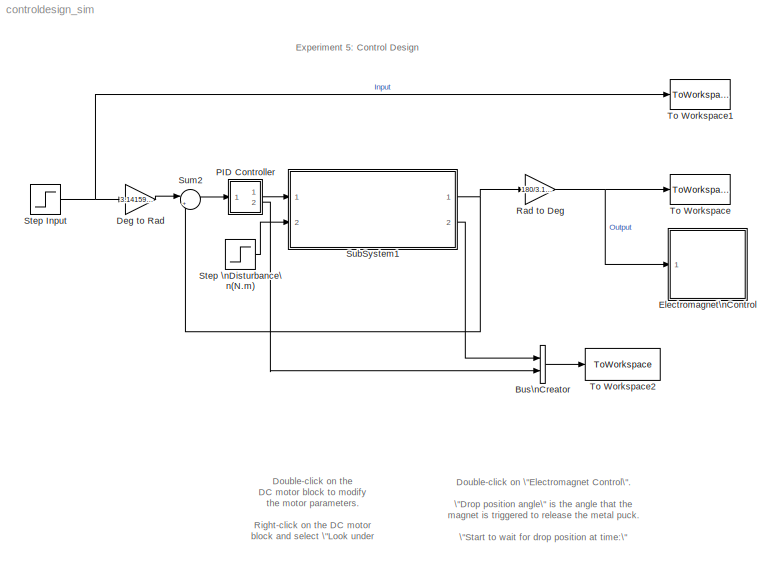
MODEL controldesign_sim
KIND model
CONFIG StopFcn = save_system(vars.simfilename);
BLOCK [BusCreator] Bus\nCreator
  DisplayOption = bar
  Inputs = 2
  Ports = [2, 1]
BLOCK [Gain] Deg to Rad
  Gain = 3.14159/180
  OutDataType = sfix(16)
  OutScaling = 2^0
  ParameterDataType = sfix(16)
  ParameterScaling = 2^0
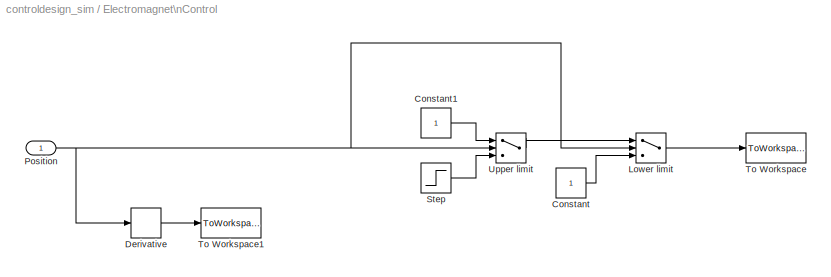
BLOCK [SubSystem] Electromagnet\nControl
  FunctionWithSeparateData = off
  MaskCallbackString = |
  MaskEnableString = on,on
  MaskIconFrame = on
  MaskIconOpaque = on
  MaskIconRotate = none
  MaskIconUnits = autoscale
  MaskPromptString = Drop position angle|Start to wait for drop position at time:
  MaskStyleString = edit,edit
  MaskTabNameString = ,
  MaskToolTipString = on,on
  MaskTunableValueString = on,on
  MaskValueString = 230|2
  MaskVarAliasString = ,
  MaskVariables = DropAngle=@1;Wait=@2;
  MaskVisibilityString = on,on
  MinAlgLoopOccurrences = off
  Ports = [1]
  RTWSystemCode = Auto
BLOCK [Constant] Electromagnet\nControl/Constant
  OutDataType = sfix(16)
  OutScaling = 2^0
BLOCK [Constant] Electromagnet\nControl/Constant1
  OutDataType = sfix(16)
  OutScaling = 2^0
BLOCK [Derivative] Electromagnet\nControl/Derivative
BLOCK [Switch] Electromagnet\nControl/Lower limit
  Threshold = DropAngle
BLOCK [Inport] Electromagnet\nControl/Position
  IconDisplay = Port number
  OutDataType = sfix(16)
  OutScaling = 2^0
BLOCK [Step] Electromagnet\nControl/Step
  After = 0
  Before = 1
  SampleTime = 0
  Time = Wait
BLOCK [ToWorkspace] Electromagnet\nControl/To Workspace
  MaxDataPoints = inf
  SampleTime = -1
  SaveFormat = Structure With Time
  VariableName = magnet
BLOCK [ToWorkspace] Electromagnet\nControl/To Workspace1
  MaxDataPoints = inf
  SampleTime = -1
  SaveFormat = Structure With Time
  VariableName = velocity
BLOCK [Switch] Electromagnet\nControl/Upper limit
  Threshold = DropAngle+1
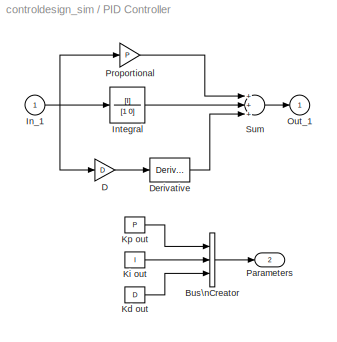
BLOCK [SubSystem] PID Controller
  AncestorBlock = simulink_extras/Additional\nLinear/PID Controller
  FunctionWithSeparateData = off
  MaskCallbackString = ||
  MaskDescription = Enter expressions for proportional, integral, and derivative terms.\nP+I/s+Ds
  MaskDisplay = disp('PID')
  MaskEnableString = on,on,on
  MaskHelp = This block implements a PID controller where parameters are entered for the Proportional, Integral and Derivative terms. Unmask this block to see how it works. The derivative term is implemented using a true derivative block.
  MaskIconFrame = on
  MaskIconOpaque = on
  MaskIconRotate = none
  MaskIconUnits = autoscale
  MaskPromptString = Proportional:|Integral:|Derivative:
  MaskStyleString = edit,edit,edit
  MaskTabNameString = ,,
  MaskToolTipString = on,on,on
  MaskTunableValueString = on,on,on
  MaskType = PID Controller
  MaskValueString = 3|0|0.05
  MaskVarAliasString = ,,
  MaskVariables = P=@1;I=@2;D=@3;
  MaskVisibilityString = on,on,on
  MinAlgLoopOccurrences = off
  Ports = [1, 2]
  RTWSystemCode = Auto
BLOCK [BusCreator] PID Controller/Bus\nCreator
  DisplayOption = bar
  Inputs = 3
  Ports = [3, 1]
BLOCK [Gain] PID Controller/D
  Gain = D
  OutDataType = sfix(16)
  OutScaling = 2^0
  ParameterDataType = sfix(16)
  ParameterScaling = 2^0
BLOCK [Derivative] PID Controller/Derivative
BLOCK [Inport] PID Controller/In_1
  IconDisplay = Port number
  OutDataType = sfix(16)
  OutScaling = 2^0
BLOCK [TransferFcn] PID Controller/Integral
  Denominator = [1 0]
  Numerator = [I]
BLOCK [Constant] PID Controller/Kd out
  OutDataType = sfix(16)
  OutScaling = 2^0
  Value = D
BLOCK [Constant] PID Controller/Ki out
  OutDataType = sfix(16)
  OutScaling = 2^0
  Value = I
BLOCK [Constant] PID Controller/Kp out
  OutDataType = sfix(16)
  OutScaling = 2^0
  Value = P
BLOCK [Outport] PID Controller/Out_1
  IconDisplay = Port number
  InitialOutput = 0
  OutDataType = sfix(16)
  OutScaling = 2^0
BLOCK [Outport] PID Controller/Parameters
  IconDisplay = Port number
  OutDataType = sfix(16)
  OutScaling = 2^0
  Port = 2
BLOCK [Gain] PID Controller/Proportional
  Gain = P
  OutDataType = sfix(16)
  OutScaling = 2^0
  ParameterDataType = sfix(16)
  ParameterScaling = 2^0
BLOCK [Sum] PID Controller/Sum
  CollapseMode = All dimensions
  Inputs = +++
  OutDataType = sfix(16)
  OutScaling = 2^0
  Ports = [3, 1]
BLOCK [Gain] Rad to Deg
  Gain = 180/3.14159
  OutDataType = sfix(16)
  OutScaling = 2^0
  ParameterDataType = sfix(16)
  ParameterScaling = 2^0
BLOCK [Step] Step Input
  After = 230
  SampleTime = 0
  Time = 5
BLOCK [Step] Step \nDisturbance\n(N.m)
  After = 0
  SampleTime = 0
  Time = 0
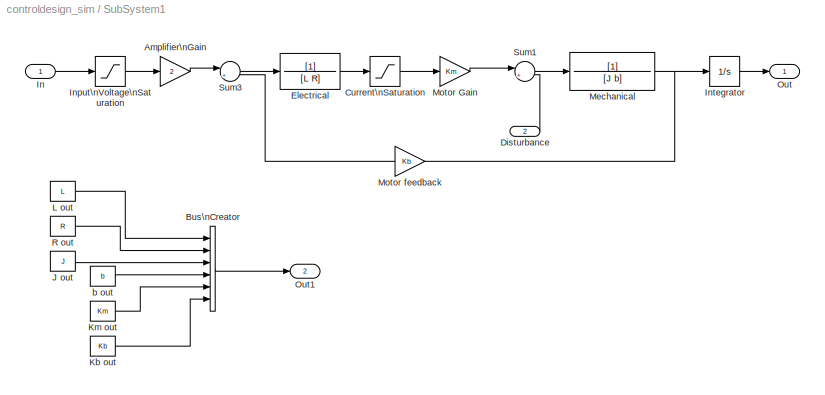
BLOCK [SubSystem] SubSystem1
  FunctionWithSeparateData = off
  MaskCallbackString = |||||
  MaskDisplay = disp('DC Motor (Position Output)')
  MaskEnableString = on,on,on,on,on,on
  MaskIconFrame = on
  MaskIconOpaque = on
  MaskIconRotate = none
  MaskIconUnits = autoscale
  MaskPromptString = Armature Inductance (L [H])|Armature Resistance (R [ohm])|Motor and Load Inertia (J [kg.m^2])|Viscous damping friction (b [kg.m^2/s])|Back emf constant (Kb [V/rad/s])|Motor constant (Km [N.m/A])
  MaskStyleString = edit,edit,edit,edit,edit,edit
  MaskTabNameString = ,,,,,
  MaskToolTipString = on,on,on,on,on,on
  MaskTunableValueString = on,on,on,on,on,on
  MaskValueString = 0.000264|2.23|0.000141|0|0.02424|0.02424
  MaskVarAliasString = ,,,,,
  MaskVariables = L=@1;R=@2;J=@3;b=@4;Kb=@5;Km=@6;
  MaskVisibilityString = on,on,on,on,on,on
  MinAlgLoopOccurrences = off
  Ports = [2, 2]
  RTWSystemCode = Auto
BLOCK [Gain] SubSystem1/Amplifier\nGain
  Gain = 2
  OutDataType = sfix(16)
  OutScaling = 2^0
  ParameterDataType = sfix(16)
  ParameterScaling = 2^0
BLOCK [BusCreator] SubSystem1/Bus\nCreator
  DisplayOption = bar
  Inputs = 6
  Ports = [6, 1]
BLOCK [Saturate] SubSystem1/Current\nSaturation
  LowerLimit = -4
  UpperLimit = +4
BLOCK [Inport] SubSystem1/Disturbance
  IconDisplay = Port number
  OutDataType = sfix(16)
  OutScaling = 2^0
  Port = 2
BLOCK [TransferFcn] SubSystem1/Electrical
  Denominator = [L R]
BLOCK [Inport] SubSystem1/In
  IconDisplay = Port number
  OutDataType = sfix(16)
  OutScaling = 2^0
BLOCK [Saturate] SubSystem1/Input\nVoltage\nSaturation
  LowerLimit = -10
  UpperLimit = +10
BLOCK [Integrator] SubSystem1/Integrator
  Ports = [1, 1]
BLOCK [Constant] SubSystem1/J out
  OutDataType = sfix(16)
  OutScaling = 2^0
  Value = J
BLOCK [Constant] SubSystem1/Kb out
  OutDataType = sfix(16)
  OutScaling = 2^0
  Value = Kb
BLOCK [Constant] SubSystem1/Km out
  OutDataType = sfix(16)
  OutScaling = 2^0
  Value = Km
BLOCK [Constant] SubSystem1/L out
  OutDataType = sfix(16)
  OutScaling = 2^0
  Value = L
BLOCK [TransferFcn] SubSystem1/Mechanical
  Denominator = [J b]
BLOCK [Gain] SubSystem1/Motor Gain
  Gain = Km
  OutDataType = sfix(16)
  OutScaling = 2^0
  ParameterDataType = sfix(16)
  ParameterScaling = 2^0
BLOCK [Gain] SubSystem1/Motor feedback
  Gain = Kb
  OutDataType = sfix(16)
  OutScaling = 2^0
  ParameterDataType = sfix(16)
  ParameterScaling = 2^0
BLOCK [Outport] SubSystem1/Out
  IconDisplay = Port number
  OutDataType = sfix(16)
  OutScaling = 2^0
BLOCK [Outport] SubSystem1/Out1
  IconDisplay = Port number
  OutDataType = sfix(16)
  OutScaling = 2^0
  Port = 2
BLOCK [Constant] SubSystem1/R out
  OutDataType = sfix(16)
  OutScaling = 2^0
  Value = R
BLOCK [Sum] SubSystem1/Sum1
  CollapseMode = All dimensions
  IconShape = round
  Inputs = |++
  OutDataType = sfix(16)
  OutScaling = 2^0
  Ports = [2, 1]
BLOCK [Sum] SubSystem1/Sum3
  CollapseMode = All dimensions
  IconShape = round
  Inputs = |+-
  OutDataType = sfix(16)
  OutScaling = 2^0
  Ports = [2, 1]
BLOCK [Constant] SubSystem1/b out
  OutDataType = sfix(16)
  OutScaling = 2^0
  Value = b
BLOCK [Sum] Sum2
  CollapseMode = All dimensions
  IconShape = round
  Inputs = |+-
  OutDataType = sfix(16)
  OutScaling = 2^0
  Ports = [2, 1]
BLOCK [ToWorkspace] To Workspace
  MaxDataPoints = inf
  SampleTime = -1
  SaveFormat = Structure With Time
  VariableName = output
BLOCK [ToWorkspace] To Workspace1
  MaxDataPoints = inf
  SampleTime = -1
  SaveFormat = Structure With Time
  VariableName = input
BLOCK [ToWorkspace] To Workspace2
  MaxDataPoints = inf
  SampleTime = -1
  SaveFormat = Array
  VariableName = motorParams
ANNOTATION (root): Double-click on \"Electromagnet Control\".\n\n\"Drop position angle\" is the angle that the \nmagnet is triggered to release the metal puck.\n\n\"Start to wait for drop position at time:\"\nrefers to the time when the magnet trigger is \nenabled.
ANNOTATION (root): Double-click on the\nDC motor block to modify \nthe motor parameters.\n\nRight-click on the DC motor\nblock and select \"Look under\nMask\" to see the simulation\nDC motor model.
ANNOTATION (root): Experiment 5: Control Design
LINE Bus\nCreator:1 -> To Workspace2:1
LINE Deg to Rad:1 -> Sum2:1
LINE Electromagnet\nControl/Constant1:1 -> Electromagnet\nControl/Upper limit:1
LINE Electromagnet\nControl/Constant:1 -> Electromagnet\nControl/Lower limit:3
LINE Electromagnet\nControl/Derivative:1 -> Electromagnet\nControl/To Workspace1:1
LINE Electromagnet\nControl/Lower limit:1 -> Electromagnet\nControl/To Workspace:1
NET Electromagnet\nControl/Position:1 -> Electromagnet\nControl/Derivative:1, Electromagnet\nControl/Lower limit:2, Electromagnet\nControl/Upper limit:2
LINE Electromagnet\nControl/Step:1 -> Electromagnet\nControl/Upper limit:3
LINE Electromagnet\nControl/Upper limit:1 -> Electromagnet\nControl/Lower limit:1
LINE PID Controller/Bus\nCreator:1 -> PID Controller/Parameters:1
LINE PID Controller/D:1 -> PID Controller/Derivative:1
LINE PID Controller/Derivative:1 -> PID Controller/Sum:3
NET PID Controller/In_1:1 -> PID Controller/D:1, PID Controller/Integral:1, PID Controller/Proportional:1
LINE PID Controller/Integral:1 -> PID Controller/Sum:2
LINE PID Controller/Kd out:1 -> PID Controller/Bus\nCreator:3
LINE PID Controller/Ki out:1 -> PID Controller/Bus\nCreator:2
LINE PID Controller/Kp out:1 -> PID Controller/Bus\nCreator:1
LINE PID Controller/Proportional:1 -> PID Controller/Sum:1
LINE PID Controller/Sum:1 -> PID Controller/Out_1:1
LINE PID Controller:1 -> SubSystem1:1
LINE PID Controller:2 -> Bus\nCreator:2
NET Rad to Deg:1 -> Electromagnet\nControl:1, To Workspace:1
NET Step Input:1 -> Deg to Rad:1, To Workspace1:1
LINE Step \nDisturbance\n(N.m):1 -> SubSystem1:2
LINE SubSystem1/Amplifier\nGain:1 -> SubSystem1/Sum3:1
LINE SubSystem1/Bus\nCreator:1 -> SubSystem1/Out1:1
LINE SubSystem1/Current\nSaturation:1 -> SubSystem1/Motor Gain:1
LINE SubSystem1/Disturbance:1 -> SubSystem1/Sum1:2
LINE SubSystem1/Electrical:1 -> SubSystem1/Current\nSaturation:1
LINE SubSystem1/In:1 -> SubSystem1/Input\nVoltage\nSaturation:1
LINE SubSystem1/Input\nVoltage\nSaturation:1 -> SubSystem1/Amplifier\nGain:1
LINE SubSystem1/Integrator:1 -> SubSystem1/Out:1
LINE SubSystem1/J out:1 -> SubSystem1/Bus\nCreator:3
LINE SubSystem1/Kb out:1 -> SubSystem1/Bus\nCreator:6
LINE SubSystem1/Km out:1 -> SubSystem1/Bus\nCreator:5
LINE SubSystem1/L out:1 -> SubSystem1/Bus\nCreator:1
NET SubSystem1/Mechanical:1 -> SubSystem1/Integrator:1, SubSystem1/Motor feedback:1
LINE SubSystem1/Motor Gain:1 -> SubSystem1/Sum1:1
LINE SubSystem1/Motor feedback:1 -> SubSystem1/Sum3:2
LINE SubSystem1/R out:1 -> SubSystem1/Bus\nCreator:2
LINE SubSystem1/Sum1:1 -> SubSystem1/Mechanical:1
LINE SubSystem1/Sum3:1 -> SubSystem1/Electrical:1
LINE SubSystem1/b out:1 -> SubSystem1/Bus\nCreator:4
NET SubSystem1:1 -> Rad to Deg:1, Sum2:2
LINE SubSystem1:2 -> Bus\nCreator:1
LINE Sum2:1 -> PID Controller:1
note: NET lines group one-source signal fan-out (src -> all destinations, sorted); 1:1 wires keep LINE
